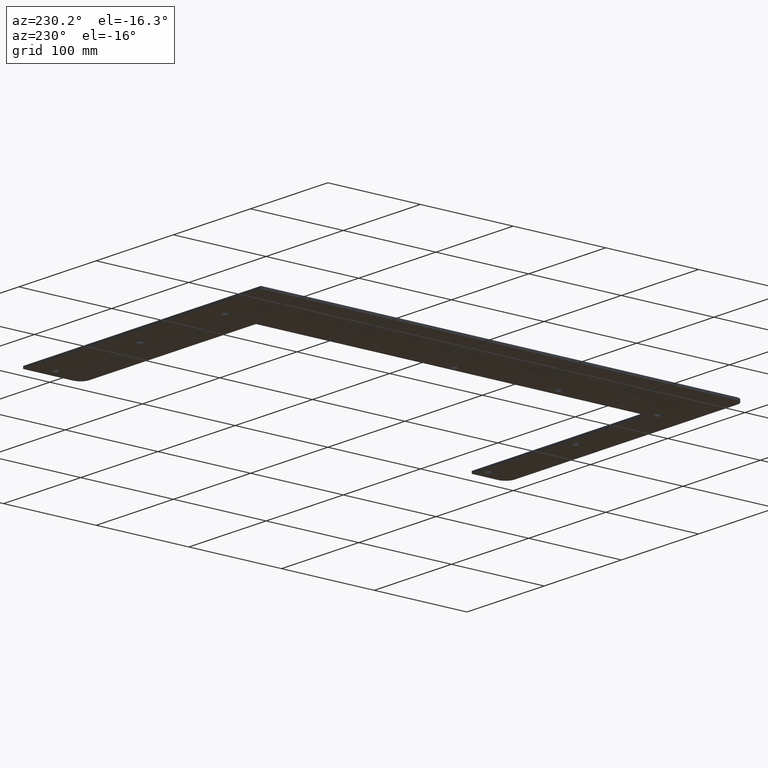
[diagram: clean part render]
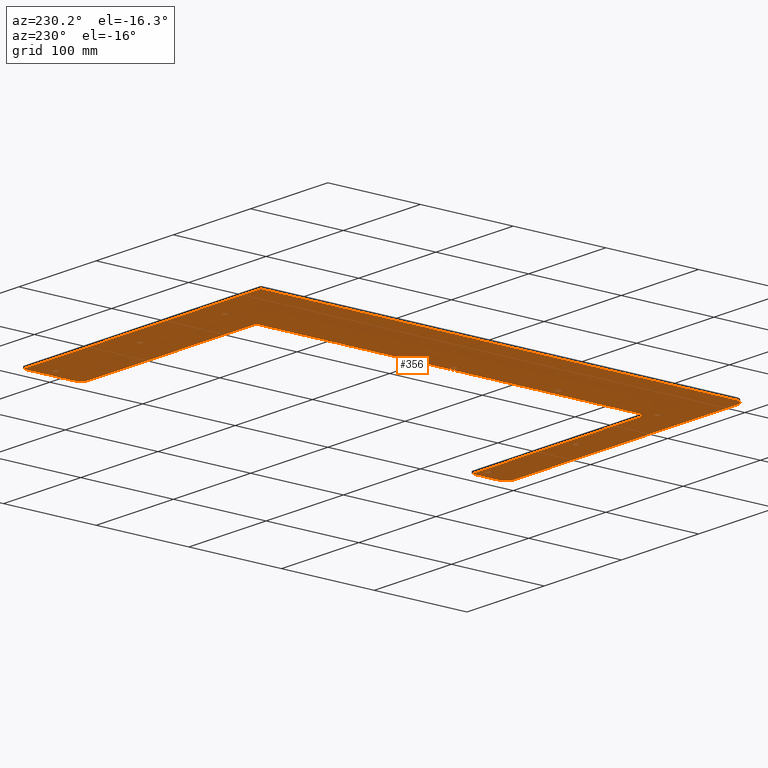
[diagram: same view with one face highlighted and labeled with its STEP entity id]
A machine part, auxiliary view. The second image highlights one B-rep face of the part: STEP entity #356.
In plain terms, the highlighted planar face has unit normal (0, 0, 1).
Its self-contained STEP definition (entity closure, byte-faithful):
#5 = ORIENTED_EDGE ( 'NONE', *, *, #120, .T. ) ;
#7 = DIRECTION ( 'NONE',  ( 1.319733330272589941E-16, -1.000000000000000000, 0.0000000000000000000 ) ) ;
#11 = LINE ( 'NONE', #16, #102 ) ;
#16 = CARTESIAN_POINT ( 'NONE',  ( 12.12500000000000178, 0.0000000000000000000, 0.0000000000000000000 ) ) ;
#21 = CARTESIAN_POINT ( 'NONE',  ( 7.287686882301918868E-16, 0.3750000000000001110, 0.0000000000000000000 ) ) ;
#22 = CARTESIAN_POINT ( 'NONE',  ( 12.12500000000000178, 20.56000000000000227, 0.0000000000000000000 ) ) ;
#25 = CARTESIAN_POINT ( 'NONE',  ( 11.75000000000000000, 0.0000000000000000000, 0.0000000000000000000 ) ) ;
#29 = VERTEX_POINT ( 'NONE', #209 ) ;
#31 = CIRCLE ( 'NONE', #671, 0.1562499999999997224 ) ;
#32 = DIRECTION ( 'NONE',  ( 1.000000000000000000, 0.0000000000000000000, 0.0000000000000000000 ) ) ;
#34 = VERTEX_POINT ( 'NONE', #724 ) ;
#36 = CARTESIAN_POINT ( 'NONE',  ( 3.156250000000003997, 19.56000000000000227, 0.0000000000000000000 ) ) ;
#38 = DIRECTION ( 'NONE',  ( 0.0000000000000000000, 0.0000000000000000000, 1.000000000000000000 ) ) ;
#43 = FACE_BOUND ( 'NONE', #572, .T. ) ;
#46 = FACE_BOUND ( 'NONE', #507, .T. ) ;
#50 = DIRECTION ( 'NONE',  ( -1.223410748777129902E-17, 1.000000000000000000, 0.0000000000000000000 ) ) ;
#58 = VERTEX_POINT ( 'NONE', #453 ) ;
#62 = CIRCLE ( 'NONE', #319, 0.1562500000000002776 ) ;
#63 = DIRECTION ( 'NONE',  ( 0.0000000000000000000, 0.0000000000000000000, 1.000000000000000000 ) ) ;
#67 = VECTOR ( 'NONE', #85, 39.37007874015748143 ) ;
#70 = CARTESIAN_POINT ( 'NONE',  ( 2.762364656713910594E-16, 20.56000000000000227, 0.0000000000000000000 ) ) ;
#72 = EDGE_CURVE ( 'NONE', #374, #374, #694, .T. ) ;
#73 = CARTESIAN_POINT ( 'NONE',  ( 12.12500000000000178, 18.06000000000000227, 0.0000000000000000000 ) ) ;
#74 = ORIENTED_EDGE ( 'NONE', *, *, #346, .T. ) ;
#75 = LINE ( 'NONE', #198, #368 ) ;
#79 = ORIENTED_EDGE ( 'NONE', *, *, #170, .T. ) ;
#82 = CARTESIAN_POINT ( 'NONE',  ( 0.3750000000000007772, 0.0000000000000000000, 0.0000000000000000000 ) ) ;
#84 = CIRCLE ( 'NONE', #295, 0.1562500000000008327 ) ;
#85 = DIRECTION ( 'NONE',  ( -1.000000000000000000, -0.0000000000000000000, 0.0000000000000000000 ) ) ;
#86 = DIRECTION ( 'NONE',  ( 1.000000000000000000, 0.0000000000000000000, 0.0000000000000000000 ) ) ;
#92 = CARTESIAN_POINT ( 'NONE',  ( 3.156250000000007994, 1.187500000000000000, 0.0000000000000000000 ) ) ;
#102 = VECTOR ( 'NONE', #370, 39.37007874015748143 ) ;
#104 = ORIENTED_EDGE ( 'NONE', *, *, #735, .T. ) ;
#113 = AXIS2_PLACEMENT_3D ( 'NONE', #189, #714, #697 ) ;
#120 = EDGE_CURVE ( 'NONE', #326, #326, #421, .T. ) ;
#122 = EDGE_LOOP ( 'NONE', ( #201 ) ) ;
#126 = DIRECTION ( 'NONE',  ( -1.000000000000000000, -0.0000000000000000000, 0.0000000000000000000 ) ) ;
#142 = EDGE_CURVE ( 'NONE', #335, #624, #417, .T. ) ;
#144 = VERTEX_POINT ( 'NONE', #36 ) ;
#158 = ORIENTED_EDGE ( 'NONE', *, *, #545, .T. ) ;
#162 = CARTESIAN_POINT ( 'NONE',  ( 7.312500000000000888, 19.56000000000000227, 0.0000000000000000000 ) ) ;
#165 = EDGE_CURVE ( 'NONE', #546, #546, #84, .T. ) ;
#166 = DIRECTION ( 'NONE',  ( 1.000000000000000000, 0.0000000000000000000, 0.0000000000000000000 ) ) ;
#170 = EDGE_CURVE ( 'NONE', #445, #429, #194, .T. ) ;
#175 = CIRCLE ( 'NONE', #707, 0.3750000000000000555 ) ;
#183 = DIRECTION ( 'NONE',  ( 0.0000000000000000000, 0.0000000000000000000, 1.000000000000000000 ) ) ;
#185 = DIRECTION ( 'NONE',  ( 1.000000000000000000, 0.0000000000000000000, 0.0000000000000000000 ) ) ;
#187 = DIRECTION ( 'NONE',  ( -0.0000000000000000000, -1.000000000000000000, 0.0000000000000000000 ) ) ;
#188 = ORIENTED_EDGE ( 'NONE', *, *, #478, .F. ) ;
#189 = CARTESIAN_POINT ( 'NONE',  ( 11.62500000000000000, 1.187500000000000000, 0.0000000000000000000 ) ) ;
#194 = LINE ( 'NONE', #73, #719 ) ;
#198 = CARTESIAN_POINT ( 'NONE',  ( 3.250000000000003997, 18.06000000000000227, 0.0000000000000000000 ) ) ;
#201 = ORIENTED_EDGE ( 'NONE', *, *, #165, .T. ) ;
#209 = CARTESIAN_POINT ( 'NONE',  ( 7.468750000000000888, 1.062500000000000000, 0.0000000000000000000 ) ) ;
#210 = AXIS2_PLACEMENT_3D ( 'NONE', #338, #390, #166 ) ;
#214 = ORIENTED_EDGE ( 'NONE', *, *, #255, .T. ) ;
#218 = EDGE_CURVE ( 'NONE', #619, #732, #304, .T. ) ;
#219 = CIRCLE ( 'NONE', #650, 0.1562500000000002776 ) ;
#223 = EDGE_CURVE ( 'NONE', #695, #547, #244, .T. ) ;
#226 = VERTEX_POINT ( 'NONE', #21 ) ;
#230 = DIRECTION ( 'NONE',  ( -1.000000000000000000, 0.0000000000000000000, 0.0000000000000000000 ) ) ;
#236 = ORIENTED_EDGE ( 'NONE', *, *, #536, .T. ) ;
#241 = ORIENTED_EDGE ( 'NONE', *, *, #223, .T. ) ;
#244 = LINE ( 'NONE', #253, #67 ) ;
#246 = CARTESIAN_POINT ( 'NONE',  ( 12.12500000000000178, 18.43500000000000227, 0.0000000000000000000 ) ) ;
#248 = CARTESIAN_POINT ( 'NONE',  ( 11.62500000000000000, 19.56000000000000227, 0.0000000000000000000 ) ) ;
#253 = CARTESIAN_POINT ( 'NONE',  ( 6.658879484556653798E-16, 0.0000000000000000000, 0.0000000000000000000 ) ) ;
#255 = EDGE_CURVE ( 'NONE', #29, #29, #609, .T. ) ;
#266 = EDGE_CURVE ( 'NONE', #226, #662, #574, .T. ) ;
#269 = CARTESIAN_POINT ( 'NONE',  ( 11.75000000000000000, 18.06000000000000227, 0.0000000000000000000 ) ) ;
#272 = DIRECTION ( 'NONE',  ( -1.000000000000000000, 0.0000000000000000000, 0.0000000000000000000 ) ) ;
#274 = ORIENTED_EDGE ( 'NONE', *, *, #416, .T. ) ;
#275 = FACE_BOUND ( 'NONE', #675, .T. ) ;
#279 = CIRCLE ( 'NONE', #382, 0.3750000000000002220 ) ;
#282 = EDGE_LOOP ( 'NONE', ( #104 ) ) ;
#290 = DIRECTION ( 'NONE',  ( 1.000000000000000000, 0.0000000000000000000, 0.0000000000000000000 ) ) ;
#295 = AXIS2_PLACEMENT_3D ( 'NONE', #248, #425, #479 ) ;
#301 = CARTESIAN_POINT ( 'NONE',  ( 3.250000000000003997, 1.500000000000000222, 0.0000000000000000000 ) ) ;
#302 = EDGE_LOOP ( 'NONE', ( #371, #79, #405, #718, #236, #188, #241, #349, #470, #535, #345 ) ) ;
#304 = LINE ( 'NONE', #301, #692 ) ;
#307 = CARTESIAN_POINT ( 'NONE',  ( 3.250000000000004441, 1.500000000000000444, 0.0000000000000000000 ) ) ;
#313 = EDGE_CURVE ( 'NONE', #445, #624, #322, .T. ) ;
#314 = CARTESIAN_POINT ( 'NONE',  ( 3.000000000000007994, 1.187500000000000000, 0.0000000000000000000 ) ) ;
#319 = AXIS2_PLACEMENT_3D ( 'NONE', #428, #721, #86 ) ;
#322 = CIRCLE ( 'NONE', #495, 0.3750000000000002220 ) ;
#326 = VERTEX_POINT ( 'NONE', #92 ) ;
#331 = DIRECTION ( 'NONE',  ( 1.000000000000000000, 0.0000000000000000000, -0.0000000000000000000 ) ) ;
#334 = CARTESIAN_POINT ( 'NONE',  ( 12.12500000000000178, 20.56000000000000227, 0.0000000000000000000 ) ) ;
#335 = VERTEX_POINT ( 'NONE', #334 ) ;
#338 = CARTESIAN_POINT ( 'NONE',  ( 7.312500000000000888, 1.062500000000000000, 0.0000000000000000000 ) ) ;
#345 = ORIENTED_EDGE ( 'NONE', *, *, #142, .T. ) ;
#346 = EDGE_CURVE ( 'NONE', #144, #144, #31, .T. ) ;
#348 = EDGE_LOOP ( 'NONE', ( #648 ) ) ;
#349 = ORIENTED_EDGE ( 'NONE', *, *, #491, .F. ) ;
#356 = ADVANCED_FACE ( 'NONE', ( #565, #46, #681, #275, #393, #615, #617, #494, #43 ), #672, .F. ) ;
#368 = VECTOR ( 'NONE', #7, 39.37007874015748143 ) ;
#369 = CARTESIAN_POINT ( 'NONE',  ( 12.12500000000000178, 18.06000000000000227, 0.0000000000000000000 ) ) ;
#370 = DIRECTION ( 'NONE',  ( -0.0000000000000000000, -1.000000000000000000, 0.0000000000000000000 ) ) ;
#371 = ORIENTED_EDGE ( 'NONE', *, *, #313, .F. ) ;
#374 = VERTEX_POINT ( 'NONE', #553 ) ;
#382 = AXIS2_PLACEMENT_3D ( 'NONE', #733, #731, #272 ) ;
#385 = VECTOR ( 'NONE', #187, 39.37007874015748143 ) ;
#388 = DIRECTION ( 'NONE',  ( 0.0000000000000000000, 0.0000000000000000000, 1.000000000000000000 ) ) ;
#390 = DIRECTION ( 'NONE',  ( 0.0000000000000000000, 0.0000000000000000000, 1.000000000000000000 ) ) ;
#393 = FACE_BOUND ( 'NONE', #122, .T. ) ;
#397 = CARTESIAN_POINT ( 'NONE',  ( 3.000000000000003997, 19.56000000000000227, 0.0000000000000000000 ) ) ;
#405 = ORIENTED_EDGE ( 'NONE', *, *, #605, .T. ) ;
#410 = CARTESIAN_POINT ( 'NONE',  ( 3.156250000000007994, 9.812500000000001776, 0.0000000000000000000 ) ) ;
#416 = EDGE_CURVE ( 'NONE', #34, #34, #219, .T. ) ;
#417 = LINE ( 'NONE', #369, #385 ) ;
#421 = CIRCLE ( 'NONE', #612, 0.1562500000000002776 ) ;
#425 = DIRECTION ( 'NONE',  ( 0.0000000000000000000, 0.0000000000000000000, 1.000000000000000000 ) ) ;
#428 = CARTESIAN_POINT ( 'NONE',  ( 3.000000000000007994, 9.812500000000001776, 0.0000000000000000000 ) ) ;
#429 = VERTEX_POINT ( 'NONE', #555 ) ;
#438 = CARTESIAN_POINT ( 'NONE',  ( 11.78125000000000178, 1.187500000000000000, 0.0000000000000000000 ) ) ;
#441 = CARTESIAN_POINT ( 'NONE',  ( 6.658879484556653798E-16, 0.0000000000000000000, 0.0000000000000000000 ) ) ;
#445 = VERTEX_POINT ( 'NONE', #269 ) ;
#453 = CARTESIAN_POINT ( 'NONE',  ( 12.12500000000000178, 0.3750000000000000555, 0.0000000000000000000 ) ) ;
#459 = EDGE_LOOP ( 'NONE', ( #5 ) ) ;
#470 = ORIENTED_EDGE ( 'NONE', *, *, #266, .T. ) ;
#474 = DIRECTION ( 'NONE',  ( 1.000000000000000000, 0.0000000000000000000, 0.0000000000000000000 ) ) ;
#477 = DIRECTION ( 'NONE',  ( -1.000000000000000000, 0.0000000000000000000, 0.0000000000000000000 ) ) ;
#478 = EDGE_CURVE ( 'NONE', #695, #58, #279, .T. ) ;
#479 = DIRECTION ( 'NONE',  ( 1.000000000000000000, 0.0000000000000000000, 0.0000000000000000000 ) ) ;
#488 = VECTOR ( 'NONE', #185, 39.37007874015748143 ) ;
#491 = EDGE_CURVE ( 'NONE', #226, #547, #175, .T. ) ;
#494 = FACE_BOUND ( 'NONE', #282, .T. ) ;
#495 = AXIS2_PLACEMENT_3D ( 'NONE', #622, #626, #230 ) ;
#499 = EDGE_LOOP ( 'NONE', ( #74 ) ) ;
#507 = EDGE_LOOP ( 'NONE', ( #214 ) ) ;
#511 = CARTESIAN_POINT ( 'NONE',  ( 4.143546985070866137E-16, 20.56000000000000227, 0.0000000000000000000 ) ) ;
#520 = CIRCLE ( 'NONE', #113, 0.1562500000000008327 ) ;
#526 = DIRECTION ( 'NONE',  ( -0.0000000000000000000, -0.0000000000000000000, 1.000000000000000000 ) ) ;
#535 = ORIENTED_EDGE ( 'NONE', *, *, #630, .T. ) ;
#536 = EDGE_CURVE ( 'NONE', #732, #58, #11, .T. ) ;
#543 = CARTESIAN_POINT ( 'NONE',  ( 12.12500000000000178, 1.500000000000000222, 0.0000000000000000000 ) ) ;
#545 = EDGE_CURVE ( 'NONE', #556, #556, #520, .T. ) ;
#546 = VERTEX_POINT ( 'NONE', #604 ) ;
#547 = VERTEX_POINT ( 'NONE', #82 ) ;
#553 = CARTESIAN_POINT ( 'NONE',  ( 7.468750000000000888, 19.56000000000000227, 0.0000000000000000000 ) ) ;
#555 = CARTESIAN_POINT ( 'NONE',  ( 3.250000000000003997, 18.05999999999999872, 0.0000000000000000000 ) ) ;
#556 = VERTEX_POINT ( 'NONE', #438 ) ;
#565 = FACE_OUTER_BOUND ( 'NONE', #302, .T. ) ;
#572 = EDGE_LOOP ( 'NONE', ( #158 ) ) ;
#574 = LINE ( 'NONE', #511, #633 ) ;
#584 = DIRECTION ( 'NONE',  ( 1.000000000000000000, 0.0000000000000000000, 0.0000000000000000000 ) ) ;
#604 = CARTESIAN_POINT ( 'NONE',  ( 11.78125000000000178, 19.56000000000000227, 0.0000000000000000000 ) ) ;
#605 = EDGE_CURVE ( 'NONE', #429, #619, #75, .T. ) ;
#607 = CARTESIAN_POINT ( 'NONE',  ( 2.875000000000003997, 5.500000000000000000, 0.0000000000000000000 ) ) ;
#609 = CIRCLE ( 'NONE', #210, 0.1562499999999997224 ) ;
#612 = AXIS2_PLACEMENT_3D ( 'NONE', #314, #183, #474 ) ;
#615 = FACE_BOUND ( 'NONE', #348, .T. ) ;
#617 = FACE_BOUND ( 'NONE', #499, .T. ) ;
#619 = VERTEX_POINT ( 'NONE', #307 ) ;
#622 = CARTESIAN_POINT ( 'NONE',  ( 11.75000000000000000, 18.43500000000000227, 0.0000000000000000000 ) ) ;
#624 = VERTEX_POINT ( 'NONE', #246 ) ;
#626 = DIRECTION ( 'NONE',  ( -0.0000000000000000000, -0.0000000000000000000, 1.000000000000000000 ) ) ;
#629 = DIRECTION ( 'NONE',  ( 0.0000000000000000000, 0.0000000000000000000, 1.000000000000000000 ) ) ;
#630 = EDGE_CURVE ( 'NONE', #662, #335, #701, .T. ) ;
#633 = VECTOR ( 'NONE', #50, 39.37007874015748143 ) ;
#644 = CARTESIAN_POINT ( 'NONE',  ( 0.3750000000000007772, 0.3750000000000000555, 0.0000000000000000000 ) ) ;
#646 = VERTEX_POINT ( 'NONE', #410 ) ;
#648 = ORIENTED_EDGE ( 'NONE', *, *, #72, .T. ) ;
#650 = AXIS2_PLACEMENT_3D ( 'NONE', #607, #388, #32 ) ;
#660 = DIRECTION ( 'NONE',  ( 1.000000000000000000, 0.0000000000000000000, 0.0000000000000000000 ) ) ;
#662 = VERTEX_POINT ( 'NONE', #70 ) ;
#671 = AXIS2_PLACEMENT_3D ( 'NONE', #397, #629, #290 ) ;
#672 = PLANE ( 'NONE',  #738 ) ;
#675 = EDGE_LOOP ( 'NONE', ( #274 ) ) ;
#681 = FACE_BOUND ( 'NONE', #459, .T. ) ;
#692 = VECTOR ( 'NONE', #660, 39.37007874015748143 ) ;
#694 = CIRCLE ( 'NONE', #710, 0.1562499999999997224 ) ;
#695 = VERTEX_POINT ( 'NONE', #25 ) ;
#697 = DIRECTION ( 'NONE',  ( 1.000000000000000000, 0.0000000000000000000, 0.0000000000000000000 ) ) ;
#701 = LINE ( 'NONE', #22, #488 ) ;
#707 = AXIS2_PLACEMENT_3D ( 'NONE', #644, #526, #477 ) ;
#710 = AXIS2_PLACEMENT_3D ( 'NONE', #162, #63, #584 ) ;
#714 = DIRECTION ( 'NONE',  ( 0.0000000000000000000, 0.0000000000000000000, 1.000000000000000000 ) ) ;
#718 = ORIENTED_EDGE ( 'NONE', *, *, #218, .T. ) ;
#719 = VECTOR ( 'NONE', #126, 39.37007874015748143 ) ;
#721 = DIRECTION ( 'NONE',  ( 0.0000000000000000000, 0.0000000000000000000, 1.000000000000000000 ) ) ;
#724 = CARTESIAN_POINT ( 'NONE',  ( 3.031250000000004441, 5.500000000000000000, 0.0000000000000000000 ) ) ;
#731 = DIRECTION ( 'NONE',  ( -0.0000000000000000000, -0.0000000000000000000, 1.000000000000000000 ) ) ;
#732 = VERTEX_POINT ( 'NONE', #543 ) ;
#733 = CARTESIAN_POINT ( 'NONE',  ( 11.75000000000000000, 0.3750000000000000555, 0.0000000000000000000 ) ) ;
#735 = EDGE_CURVE ( 'NONE', #646, #646, #62, .T. ) ;
#738 = AXIS2_PLACEMENT_3D ( 'NONE', #441, #38, #331 ) ;